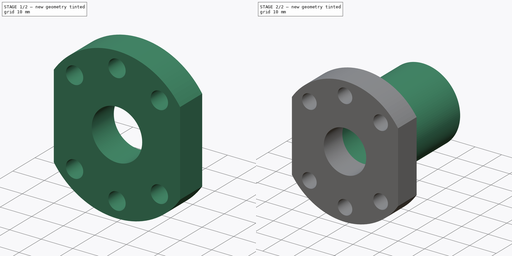
[diagram: build sequence overview — one tinted view per stage of 2, left to right]
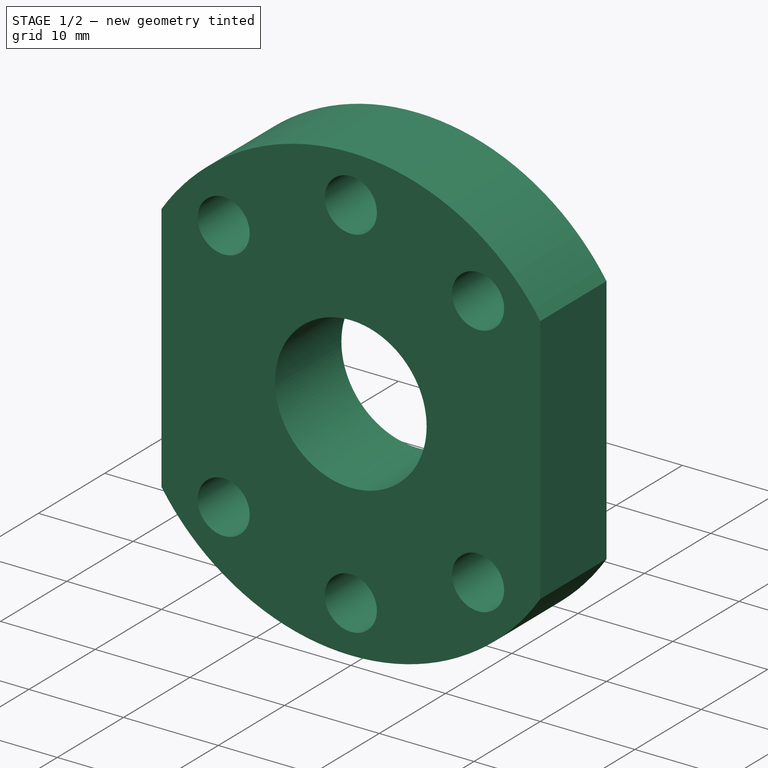
[diagram: stage 1 of 2 — iso view after this stage's code; geometry added in this stage tinted green]
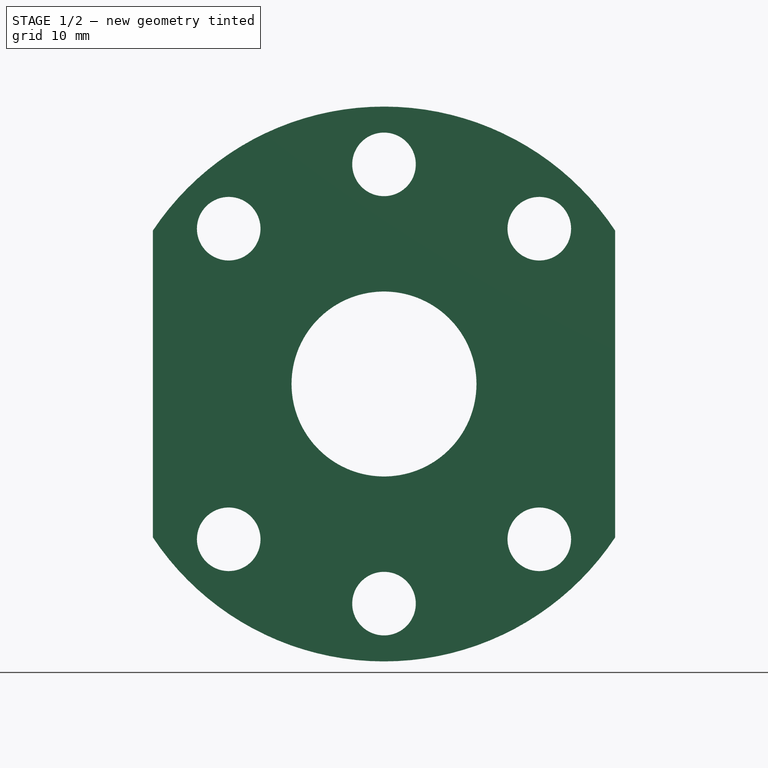
[diagram: stage 1 of 2 — front view after this stage's code; geometry added in this stage tinted green]
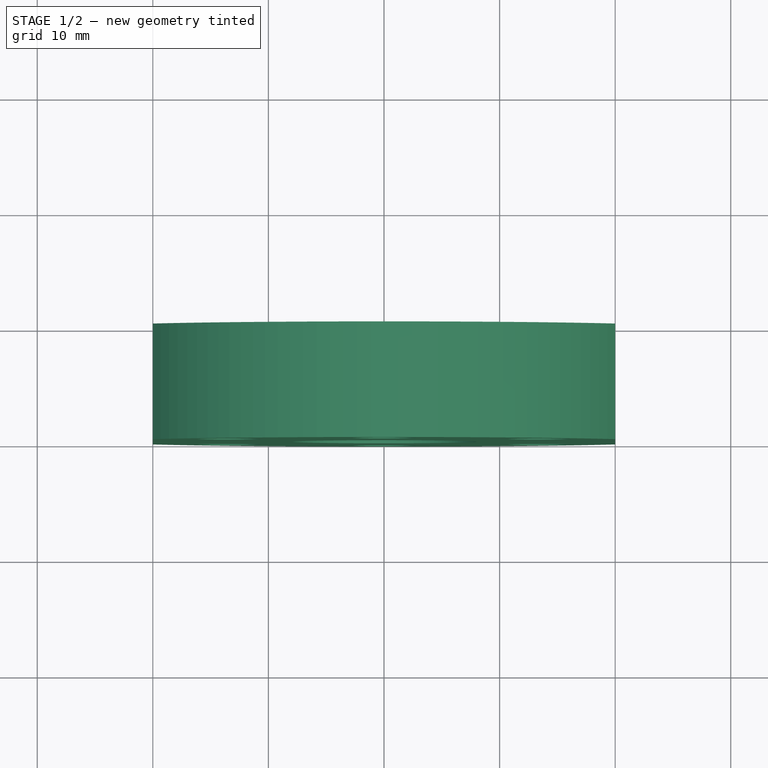
[diagram: stage 1 of 2 — top view after this stage's code; geometry added in this stage tinted green]
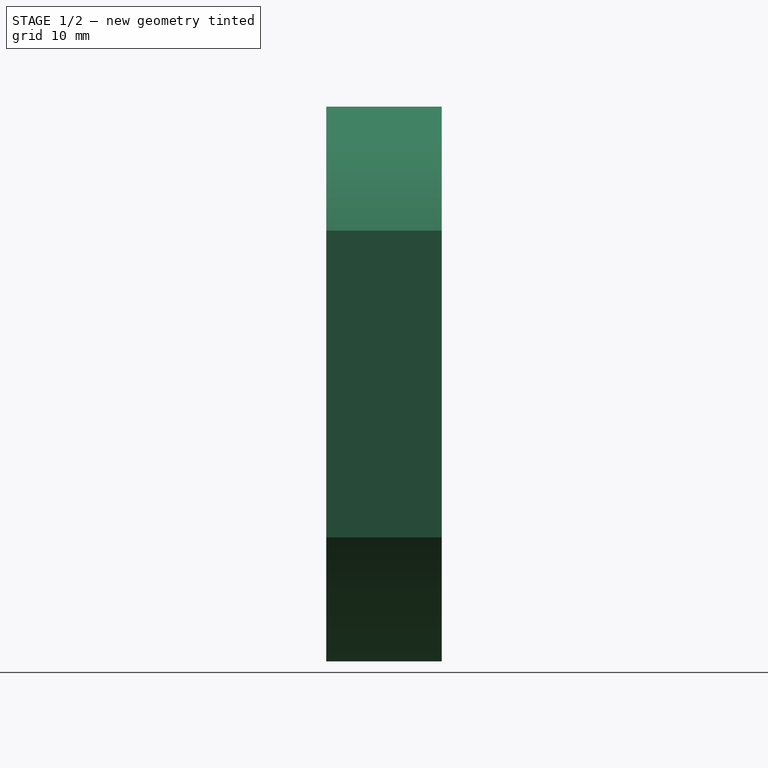
[diagram: stage 1 of 2 — right view after this stage's code; geometry added in this stage tinted green]
FCSTD DOCUMENT  (FreeCAD 0.19R)
Label: 1605
License: All rights reserved
LicenseURL: http://en.wikipedia.org/wiki/All_rights_reserved
objects: Sketcher::SketchObject×2, PartDesign::Pad×2, PartDesign::CoordinateSystem×2, PartDesign::Body×1
note: 9 computed .brp shape members not serialized (recipe doc carries the construction recipe); baked Part::Feature solids carry a one-line shape summary decoded from their .brp

FEATURE [Sketcher::SketchObject] Sketch
  FullyConstrained = true
  MapMode = 5
  Placement = pos=(0,0,0) rot=(1,0,0;1.5708rad)
  Support = -> [XZ_Plane]
  sketch-geometry (15):
    g0: LineSegment StartX=-20 StartY=13.2665 StartZ=0 EndX=-20 EndY=-13.2665 EndZ=0
    g1: LineSegment StartX=20 StartY=13.2665 StartZ=0 EndX=20 EndY=-13.2665 EndZ=0
    g2: ArcOfCircle CenterX=0 CenterY=-1.8e-15 CenterZ=0 NormalX=0 NormalY=0 NormalZ=1 AngleXU=0 Radius=24 StartAngle=0.585686 EndAngle=2.55591
    g3: ArcOfCircle CenterX=0 CenterY=-1.8e-15 CenterZ=0 NormalX=0 NormalY=0 NormalZ=1 AngleXU=0 Radius=24 StartAngle=3.72728 EndAngle=5.6975
    g4: Circle CenterX=0 CenterY=-1.8e-15 CenterZ=0 NormalX=0 NormalY=0 NormalZ=1 AngleXU=0 Radius=8
    g5: Circle CenterX=-13.435 CenterY=13.435 CenterZ=0 NormalX=0 NormalY=0 NormalZ=1 AngleXU=0 Radius=2.75
    g6: Circle CenterX=0 CenterY=19 CenterZ=0 NormalX=0 NormalY=0 NormalZ=1 AngleXU=0 Radius=2.75
    g7: Circle CenterX=13.435 CenterY=13.435 CenterZ=0 NormalX=0 NormalY=0 NormalZ=1 AngleXU=0 Radius=2.75
    g8: Circle CenterX=-13.435 CenterY=-13.435 CenterZ=0 NormalX=0 NormalY=0 NormalZ=1 AngleXU=0 Radius=2.75
    g9: Circle CenterX=0 CenterY=-19 CenterZ=0 NormalX=0 NormalY=0 NormalZ=1 AngleXU=0 Radius=2.75
    g10: Circle CenterX=13.435 CenterY=-13.435 CenterZ=0 NormalX=0 NormalY=0 NormalZ=1 AngleXU=0 Radius=2.75
    g11: LineSegment StartX=0 StartY=-1.8e-15 StartZ=0 EndX=-13.435 EndY=-13.435 EndZ=0
    g12: LineSegment StartX=0 StartY=-1.8e-15 StartZ=0 EndX=13.435 EndY=-13.435 EndZ=0
    g13: LineSegment StartX=0 StartY=-1.8e-15 StartZ=0 EndX=13.435 EndY=13.435 EndZ=0
    g14: LineSegment StartX=-13.435 StartY=13.435 StartZ=0 EndX=0 EndY=-1.8e-15 EndZ=0
  constraints (38):
    c: Vertical(g0)
    c: Vertical(g1)
    c: Coincident(g2,g-1)
    c: Coincident(g2,g0)
    c: Coincident(g2,g1)
    c: Coincident(g3,g2)
    c: Coincident(g3,g1)
    c: Coincident(g3,g0)
    c: Equal(g3,g2)
    c: Diameter(g2) = 48
    c: DistanceX(g0,g1) = 40
    c: Equal(g1,g0)
    c: Coincident(g4,g2)
    c: Diameter(g4) = 16
    c: PointOnObject(g6,g-2)
    c: PointOnObject(g9,g-2)
    c: Equal(g5,g6)
    c: Equal(g6,g7)
    c: Equal(g7,g10)
    c: Equal(g10,g9)
    c: Equal(g9,g8)
    c: Diameter(g7) = 5.5
    c: Distance(g10,g2) = 19
    c: Symmetric(g8,g10,g-2)
    c: DistanceY(g9,g2) = 19
    c: DistanceY(g2,g6) = 19
    c: Symmetric(g7,g5,g-2)
    c: Distance(g7,g2) = 19
    c: Coincident(g11,g2)
    c: Coincident(g11,g8)
    c: Coincident(g12,g2)
    c: Coincident(g12,g10)
    c: Angle(g11,g12) = 1.5708
    c: Coincident(g13,g2)
    c: Coincident(g13,g7)
    c: Coincident(g14,g5)
    c: Coincident(g14,g2)
    c: Angle(g13,g14) = 1.5708
FEATURE [PartDesign::Pad] Pad
  Direction = (1,1,1)
  Length = 10
  Length2 = 100
  Placement = pos=(0,0,0) rot=(1,0,0;1.5708rad)
  Profile = -> Sketch
  Reversed = true
  Type = 0
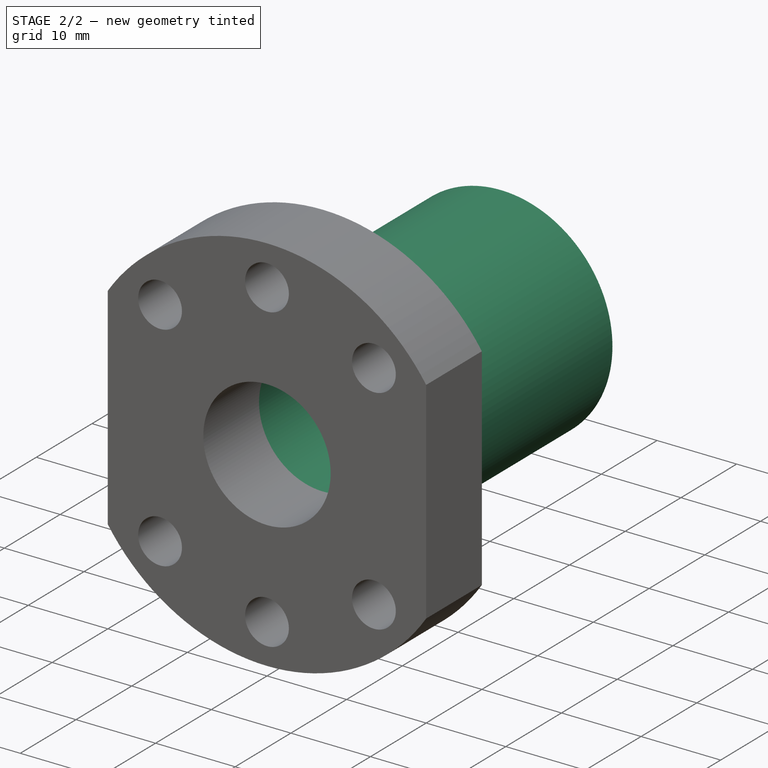
[diagram: stage 2 of 2 — iso view after this stage's code; geometry added in this stage tinted green]
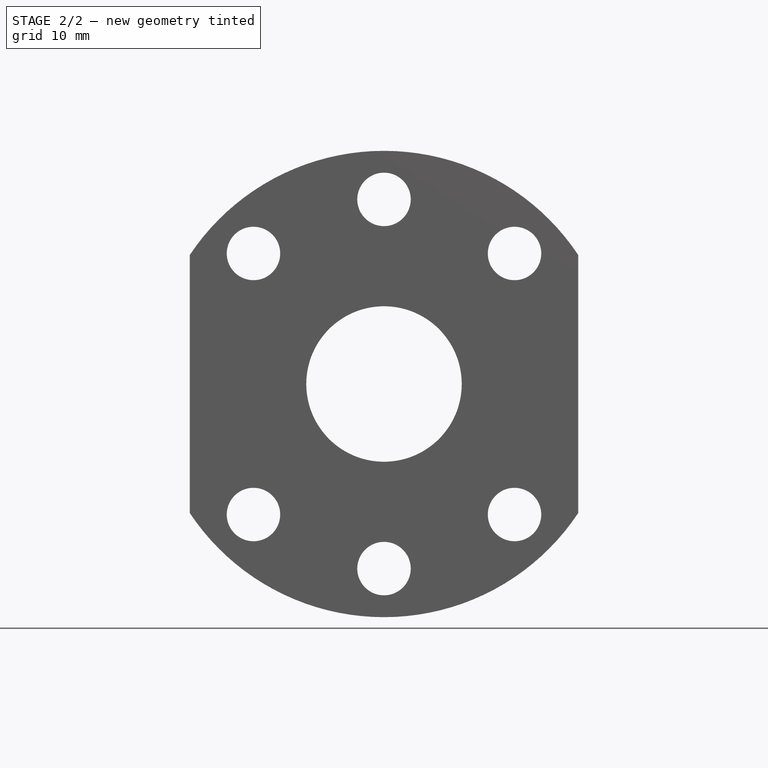
[diagram: stage 2 of 2 — front view after this stage's code; geometry added in this stage tinted green]
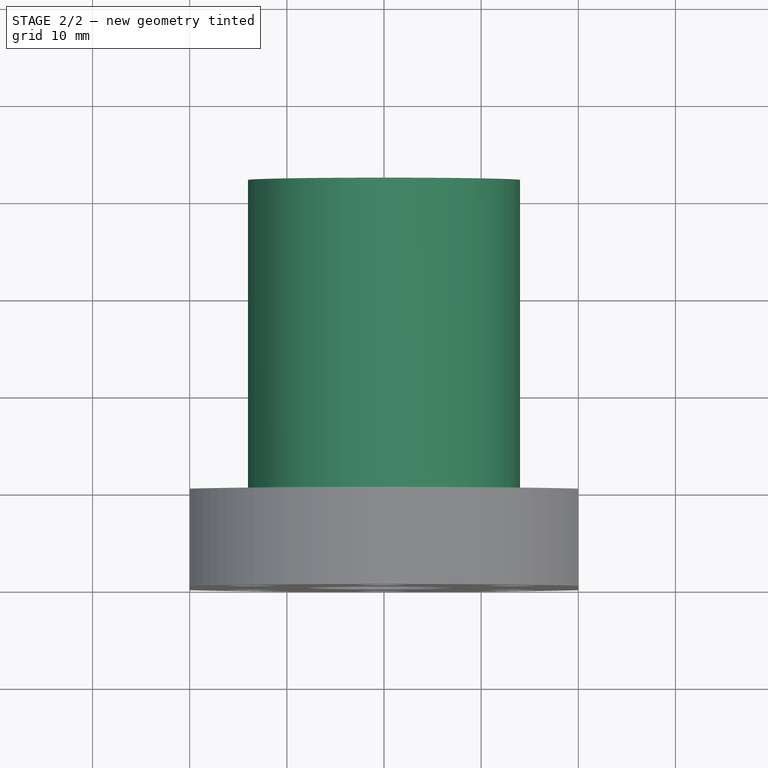
[diagram: stage 2 of 2 — top view after this stage's code; geometry added in this stage tinted green]
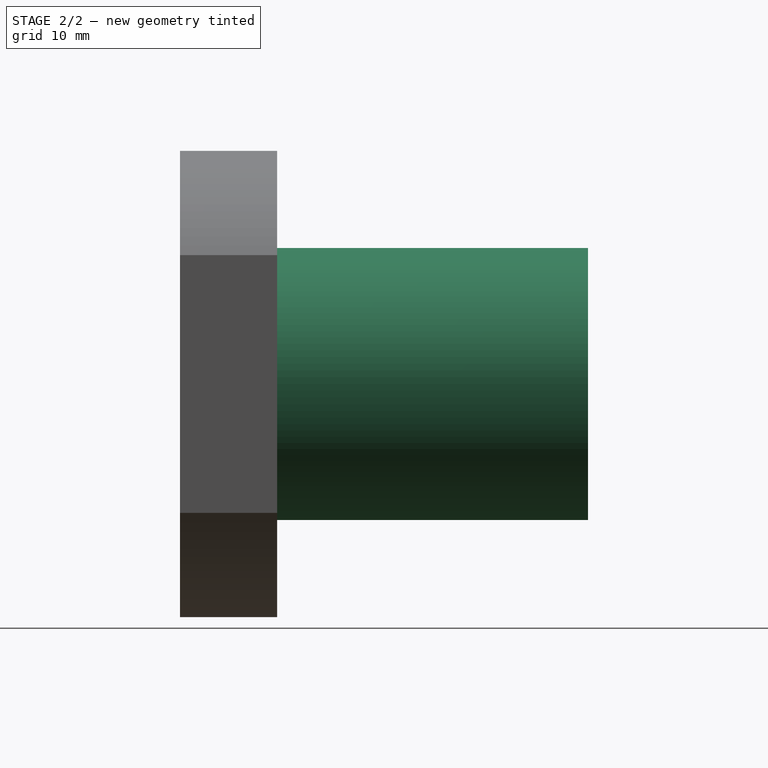
[diagram: stage 2 of 2 — right view after this stage's code; geometry added in this stage tinted green]
FEATURE [Sketcher::SketchObject] Sketch001
  FullyConstrained = true
  MapMode = 5
  Placement = pos=(0,10,-2.2e-15) rot=(-1,0,0;1.5708rad)
  Support = -> [Pad]
  sketch-geometry (2):
    g0: Circle CenterX=0 CenterY=0 CenterZ=0 NormalX=0 NormalY=0 NormalZ=1 AngleXU=0 Radius=14
    g1: Circle CenterX=0 CenterY=0 CenterZ=0 NormalX=0 NormalY=0 NormalZ=1 AngleXU=0 Radius=8
  constraints (4):
    c: Coincident(g0,g-1)
    c: Diameter(g0) = 28
    c: Coincident(g1,g0)
    c: Diameter(g1) = 16
FEATURE [PartDesign::Pad] Pad001
  BaseFeature = -> Pad
  Direction = (1,1,1)
  Length = 32
  Length2 = 100
  Placement = pos=(0,0,0) rot=(1,0,0;1.5708rad)
  Profile = -> Sketch001
  Type = 0
FEATURE [PartDesign::CoordinateSystem] LCS_N1
  AttacherType = Attacher::AttachEngine3D
  MapMode = 11
  Placement = pos=(13.435,10,13.435) rot=(0.57735,-0.57735,0.57735;2.0944rad)
  Support = -> [Pad001]
FEATURE [PartDesign::CoordinateSystem] LCS_N2
  AttacherType = Attacher::AttachEngine3D
  MapMode = 11
  Placement = pos=(-13.435,10,13.435) rot=(0.57735,-0.57735,0.57735;2.0944rad)
  Support = -> [Pad001]
FEATURE [PartDesign::Body] Body
  Group = -> [Sketch,Pad,Sketch001,Pad001,LCS_N1,LCS_N2]
  Origin = -> Origin
  Tip = -> Pad001
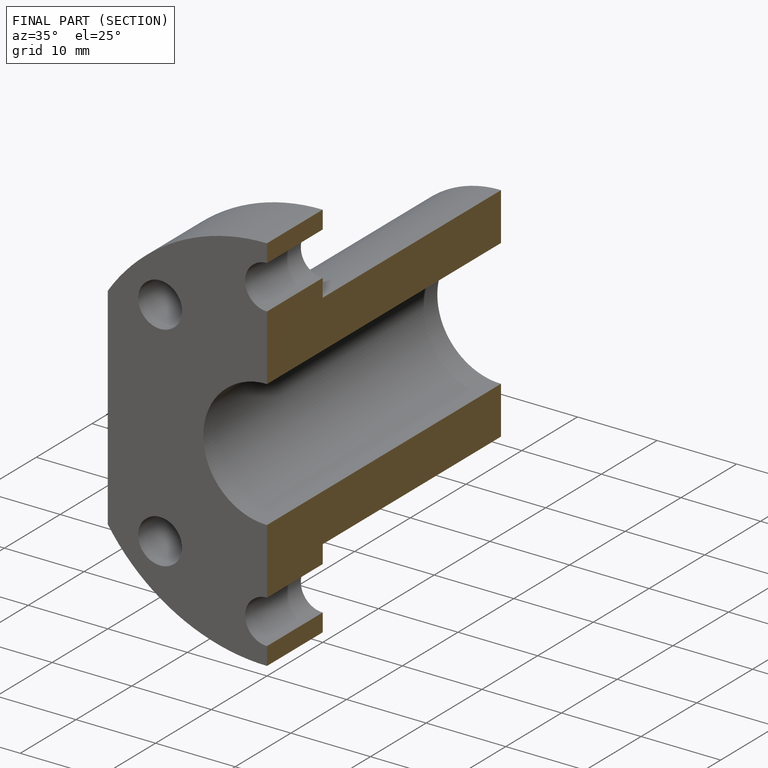
[diagram: finished part — half-section view (interior)]
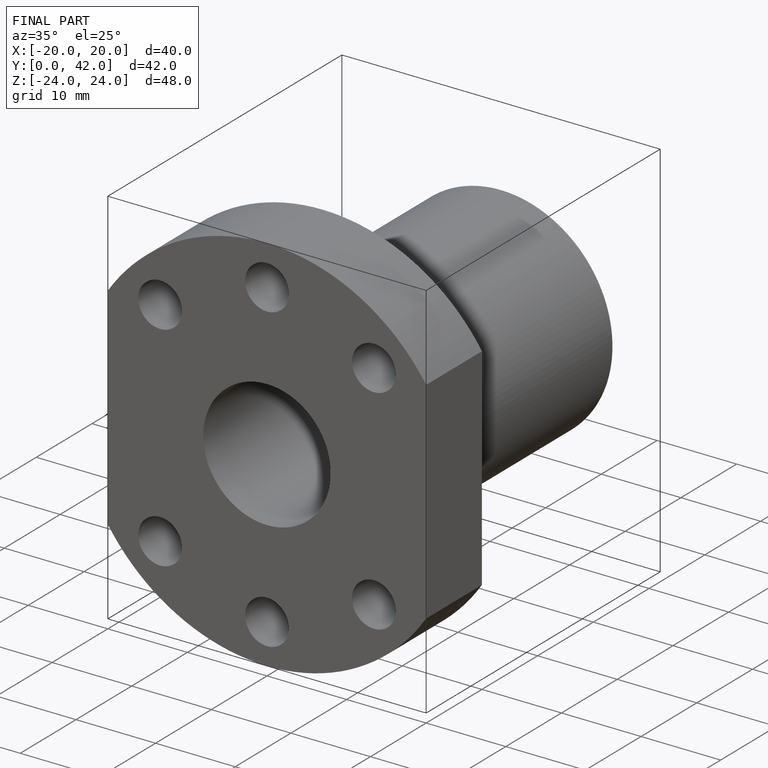
[diagram: finished part — iso view with bounding-box wireframe]
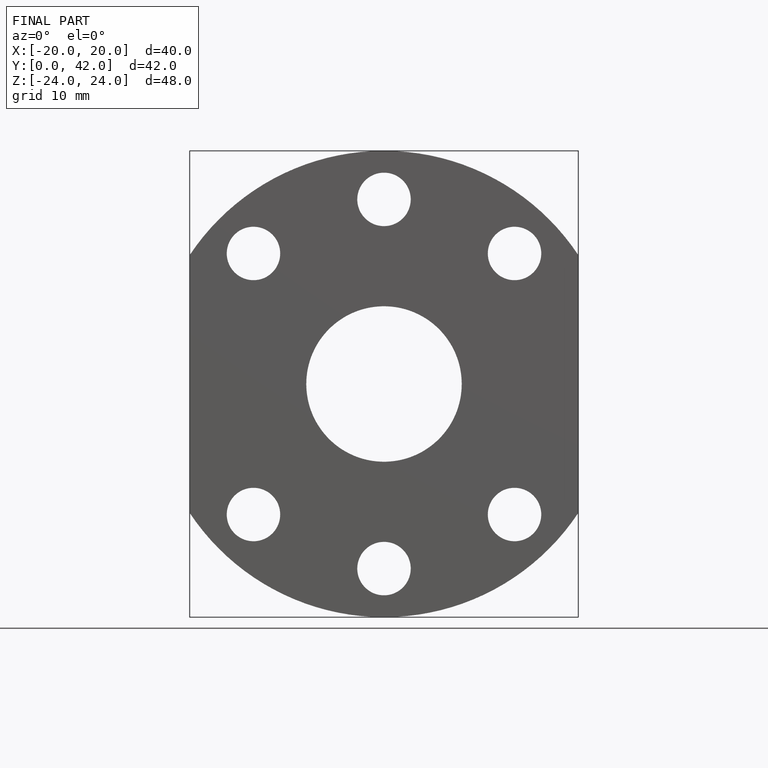
[diagram: finished part — front view with bounding-box wireframe]
